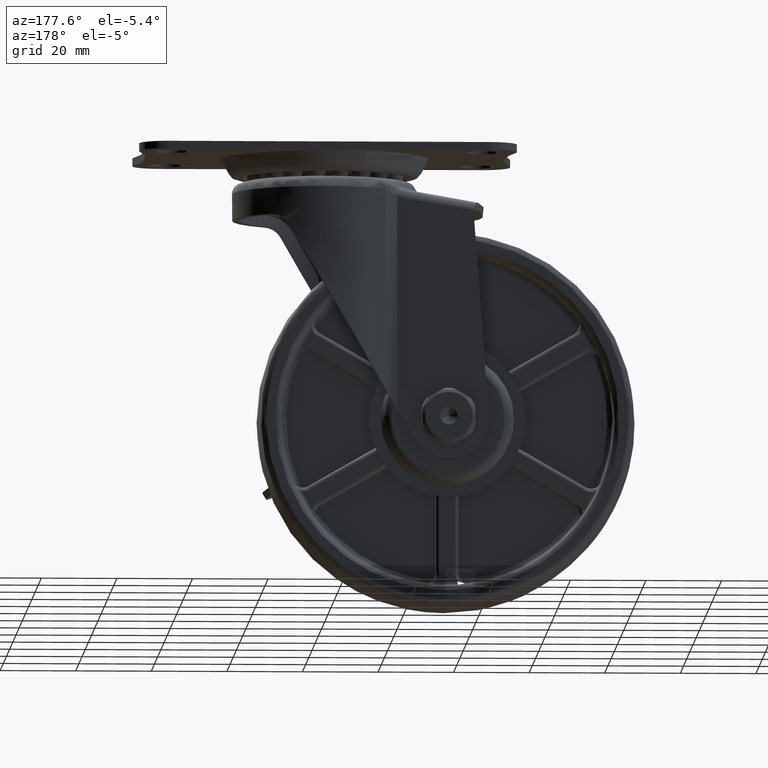
[diagram: clean part render]
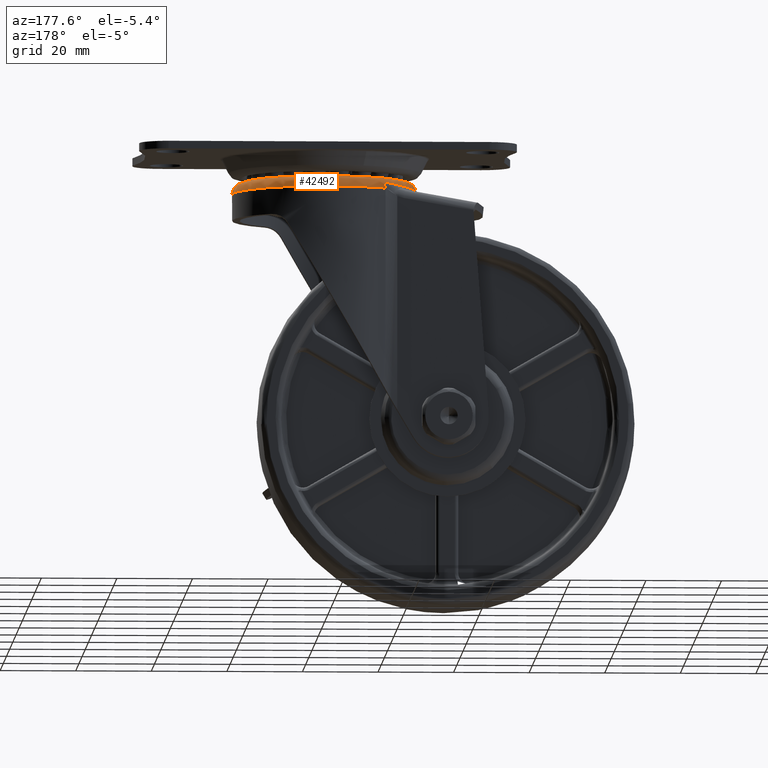
[diagram: same view with one face highlighted and labeled with its STEP entity id]
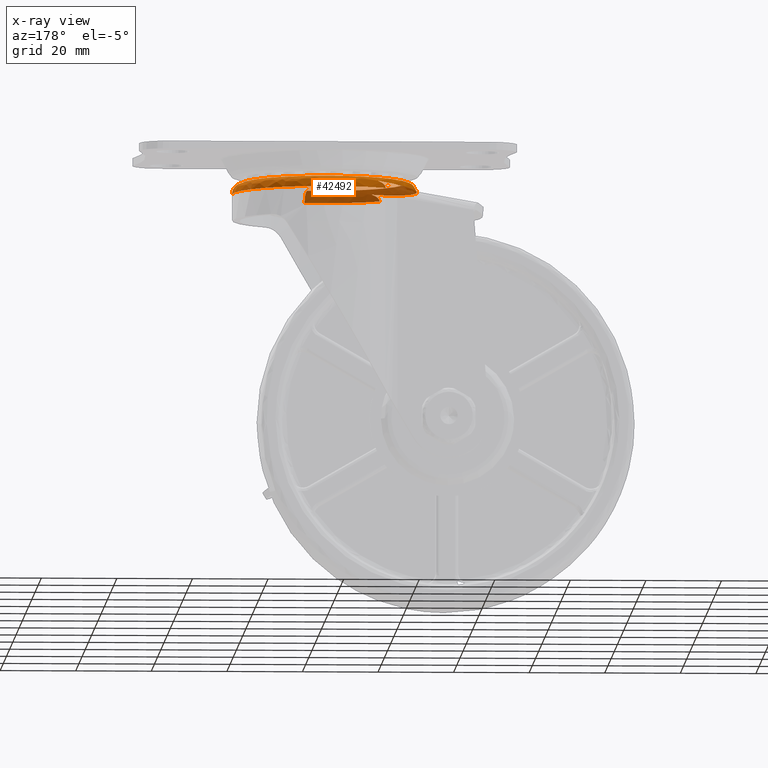
[diagram: x-ray of the same camera — body ghosted, the highlighted face saturated]
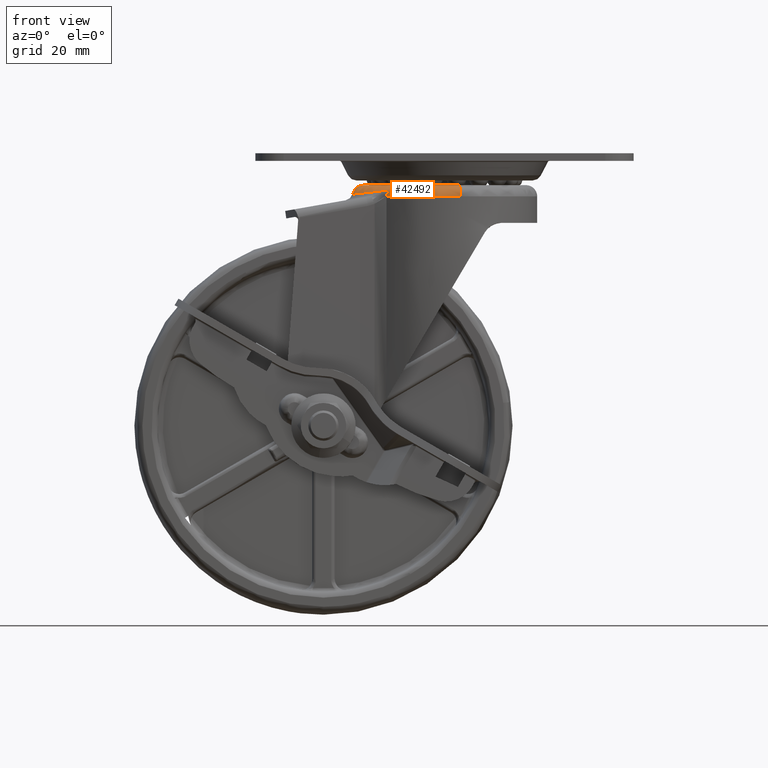
[diagram: same view with one face highlighted and labeled with its STEP entity id]
A machine part, auxiliary view. The second image highlights one B-rep face of the part: STEP entity #42492.
The next image is the same camera in x-ray: the body ghosted, the highlighted face saturated — about 41% of this face is hidden behind the body in this view.
A second angle (front view) of the same face is appended — the face is thin or edge-on in the first view.
In plain terms, the highlighted face is a freeform B-spline surface patch.
Its self-contained STEP definition (entity closure, byte-faithful):
#42207=CARTESIAN_POINT('',(3.716243674758292,-20.965127360064976,-6.407224996002399));
#42208=CARTESIAN_POINT('',(1.872492728197480,-21.291947592315886,-6.407224996002400));
#42209=CARTESIAN_POINT('',(2.607425E-015,-21.291947592315882,-6.407224996002400));
#42210=CARTESIAN_POINT('',(-21.291947592315889,-21.291947592315889,-6.407224996002399));
#42211=CARTESIAN_POINT('',(-21.291947592315882,-3.911138E-015,-6.407224996002400));
#42212=CARTESIAN_POINT('',(-21.291947592315889,21.291947592315889,-6.407224996002399));
#42213=CARTESIAN_POINT('',(-5.214851E-015,21.291947592315882,-6.407224996002400));
#42214=CARTESIAN_POINT('',(21.291947592315875,21.291947592315889,-6.407224996002399));
#42215=CARTESIAN_POINT('',(21.291947592315882,6.518564E-015,-6.407224996002400));
#42216=CARTESIAN_POINT('',(4.316874363510777,-24.353575478144410,-6.167994185442002));
#42217=CARTESIAN_POINT('',(2.175130739978131,-24.733217397662070,-6.167994185442001));
#42218=CARTESIAN_POINT('',(3.028846E-015,-24.733217397662063,-6.167994185442000));
#42219=CARTESIAN_POINT('',(-24.733217397662056,-24.733217397662081,-6.167994185442001));
#42220=CARTESIAN_POINT('',(-24.733217397662063,-4.543268E-015,-6.167994185442000));
#42221=CARTESIAN_POINT('',(-24.733217397662081,24.733217397662056,-6.167994185442001));
#42222=CARTESIAN_POINT('',(-6.057691E-015,24.733217397662063,-6.167994185442000));
#42223=CARTESIAN_POINT('',(24.733217397662056,24.733217397662081,-6.167994185442001));
#42224=CARTESIAN_POINT('',(24.733217397662063,7.572114E-015,-6.167994185442000));
#42225=CARTESIAN_POINT('',(4.274894869908892,-24.116748857798605,-9.609174234192897));
#42226=CARTESIAN_POINT('',(2.153978656481332,-24.492698945173522,-9.609174234192899));
#42227=CARTESIAN_POINT('',(2.999391E-015,-24.492698945173519,-9.609174234192897));
#42228=CARTESIAN_POINT('',(-24.492698945173519,-24.492698945173519,-9.609174234192901));
#42229=CARTESIAN_POINT('',(-24.492698945173519,-4.499087E-015,-9.609174234192897));
#42230=CARTESIAN_POINT('',(-24.492698945173519,24.492698945173519,-9.609174234192901));
#42231=CARTESIAN_POINT('',(-5.998783E-015,24.492698945173519,-9.609174234192897));
#42232=CARTESIAN_POINT('',(24.492698945173519,24.492698945173537,-9.609174234192901));
#42233=CARTESIAN_POINT('',(24.492698945173519,7.498479E-015,-9.609174234192897));
#42241=(BOUNDED_SURFACE()B_SPLINE_SURFACE(2,2,((#42207,#42216,#42225),(#42208,#42217,#42226),(#42209,#42218,#42227),(#42210,#42219,#42228),(#42211,#42220,#42229),(#42212,#42221,#42230),(#42213,#42222,#42231),(#42214,#42223,#42232),(#42215,#42224,#42233)),.UNSPECIFIED.,.F.,.F.,.U.)B_SPLINE_SURFACE_WITH_KNOTS((3,2,2,2,3),(3,3),(0.0,4.869695235354091,45.450527564202382,86.031359893050663,126.612192221898990),(0.0,5.467111417930088),.UNSPECIFIED.)GEOMETRIC_REPRESENTATION_ITEM()RATIONAL_B_SPLINE_SURFACE(((0.859305935361343,0.562333827768314,0.854545976560270),(0.883773095548491,0.578345251961345,0.878877605652289),(0.915966717678244,0.599412909028485,0.910892897447420),(0.647686277411470,0.423848932704797,0.644098544719733),(0.915966717678244,0.599412909028485,0.910892897447420),(0.647686277411470,0.423848932704797,0.644098544719733),(0.915966717678244,0.599412909028485,0.910892897447420),(0.647686277411470,0.423848932704797,0.644098544719733),(0.915966717678244,0.599412909028485,0.910892897447420)))REPRESENTATION_ITEM('')SURFACE());
#42242=CARTESIAN_POINT('',(4.276173339646856,-24.123937107555498,-9.400001998327134));
#42243=VERTEX_POINT('',#42242);
#42244=CARTESIAN_POINT('',(-15.341944184638100,-19.101694915254249,-9.400001999999999));
#42245=VERTEX_POINT('',#42244);
#42246=CARTESIAN_POINT('',(4.276173339646856,-24.123937107555498,-9.400001998327134));
#42247=CARTESIAN_POINT('',(2.456118747180007,-24.446944443260410,-9.400001998605282));
#42248=CARTESIAN_POINT('',(-0.929628026305777,-24.657379014430379,-9.400001999061859));
#42249=CARTESIAN_POINT('',(-5.793001161838604,-23.951752289160460,-9.400001999560613));
#42250=CARTESIAN_POINT('',(-10.647888235969830,-22.286091292938060,-9.400001999908749));
#42251=CARTESIAN_POINT('',(-13.731542516180870,-20.395854190378099,-9.400002000000104));
#42252=CARTESIAN_POINT('',(-15.341944184638100,-19.101694915254249,-9.400001999999999));
#42253=B_SPLINE_CURVE_WITH_KNOTS('',3,(#42246,#42247,#42248,#42249,#42250,#42251,#42252),.UNSPECIFIED.,.F.,.U.,(4,1,1,1,4),(0.000000016025691,5.545401763803277,10.112204577186651,14.679004023209780,20.876806389882969),.UNSPECIFIED.);
#42254=EDGE_CURVE('',#42243,#42245,#42253,.T.);
#42255=ORIENTED_EDGE('',*,*,#42254,.F.);
#42256=CARTESIAN_POINT('',(3.752560288242226,-21.169985670197590,-6.400002000000001));
#42257=VERTEX_POINT('',#42256);
#42258=CARTESIAN_POINT('',(3.752560288242226,-21.169985670197590,-6.400002000000001));
#42259=CARTESIAN_POINT('',(3.812537802786486,-21.508347490671209,-6.399798562871077));
#42260=CARTESIAN_POINT('',(3.923889779038400,-22.136537199501721,-6.510821443963620));
#42261=CARTESIAN_POINT('',(4.057556512446853,-22.890615116810089,-6.920224804264058));
#42262=CARTESIAN_POINT('',(4.158596669583459,-23.460630926392859,-7.458080854715424));
#42263=CARTESIAN_POINT('',(4.248223293001825,-23.966257538185928,-8.246929262651131));
#42264=CARTESIAN_POINT('',(4.276282650163525,-24.124553780414882,-8.958092850889267));
#42265=CARTESIAN_POINT('',(4.276173339646856,-24.123937107555498,-9.400001998327134));
#42266=B_SPLINE_CURVE_WITH_KNOTS('',3,(#42258,#42259,#42260,#42261,#42262,#42263,#42264,#42265),.UNSPECIFIED.,.F.,.U.,(4,1,1,1,1,4),(0.000000571946087,1.030853910485774,1.914459921600274,2.577150118331610,3.387107232801323,4.712507216697341),.UNSPECIFIED.);
#42267=EDGE_CURVE('',#42257,#42243,#42266,.T.);
#42268=ORIENTED_EDGE('',*,*,#42267,.F.);
#42269=CARTESIAN_POINT('',(-21.500000000000000,0.0,-6.400002000000000));
#42270=VERTEX_POINT('',#42269);
#42271=CARTESIAN_POINT('',(-21.500000000000000,0.0,-6.400002000000000));
#42272=CARTESIAN_POINT('',(-21.501048209837609,-2.151056934244533,-6.400001999999992));
#42273=CARTESIAN_POINT('',(-20.922787328148821,-5.963555613618548,-6.400002000000012));
#42274=CARTESIAN_POINT('',(-18.973290875219291,-10.375027064336431,-6.400001999999983));
#42275=CARTESIAN_POINT('',(-16.758767616982741,-13.609578365557191,-6.400002000000049));
#42276=CARTESIAN_POINT('',(-14.129639857556620,-16.391976325070068,-6.400001999999893));
#42277=CARTESIAN_POINT('',(-10.436549584554870,-19.005508402638899,-6.400002000000082));
#42278=CARTESIAN_POINT('',(-6.431990883438630,-20.654878475652310,-6.400001999999985));
#42279=CARTESIAN_POINT('',(-2.972360928160853,-21.354873478336959,-6.400001999999987));
#42280=CARTESIAN_POINT('',(0.250945345562225,-21.581300602464140,-6.400002000000018));
#42281=CARTESIAN_POINT('',(2.404808433907985,-21.409066832979690,-6.400001999999998));
#42282=CARTESIAN_POINT('',(3.752560288242226,-21.169985670197590,-6.400002000000001));
#42283=B_SPLINE_CURVE_WITH_KNOTS('',3,(#42271,#42272,#42273,#42274,#42275,#42276,#42277,#42278,#42279,#42280,#42281,#42282),.UNSPECIFIED.,.F.,.U.,(4,1,1,1,1,1,1,1,1,4),(0.000000029450590,6.452906660605297,11.439303376482270,14.372461039395111,18.185519980451168,22.878502023739010,27.864903016368419,31.091403549067600,33.437934624833922,37.544291095004731),.UNSPECIFIED.);
#42284=EDGE_CURVE('',#42270,#42257,#42283,.T.);
#42285=ORIENTED_EDGE('',*,*,#42284,.F.);
#42286=CARTESIAN_POINT('',(-0.000004487106987,21.499999999999531,-6.400002000000000));
#42287=VERTEX_POINT('',#42286);
#42288=CARTESIAN_POINT('',(-0.000004487106987,21.499999999999531,-6.400002000000000));
#42289=CARTESIAN_POINT('',(-1.759021788123397,21.500513242483329,-6.400001999999980));
#42290=CARTESIAN_POINT('',(-4.309261071657890,21.185140195735482,-6.400002000000020));
#42291=CARTESIAN_POINT('',(-7.926939056987589,20.063428673962079,-6.400001999999986));
#42292=CARTESIAN_POINT('',(-10.640069148231969,18.780235310738551,-6.400001999999984));
#42293=CARTESIAN_POINT('',(-13.413706326822330,16.902189865630810,-6.400002000000023));
#42294=CARTESIAN_POINT('',(-15.884017853809629,14.635502587098690,-6.400001999999961));
#42295=CARTESIAN_POINT('',(-18.328139110939290,11.504073313144501,-6.400002000000005));
#42296=CARTESIAN_POINT('',(-20.078551470587321,8.026389725681195,-6.400002000000068));
#42297=CARTESIAN_POINT('',(-21.232838468590248,4.045526772446341,-6.400001999999917));
#42298=CARTESIAN_POINT('',(-21.500209124182280,1.495134825990984,-6.400002000000060));
#42299=CARTESIAN_POINT('',(-21.500000000000000,0.0,-6.400002000000000));
#42300=B_SPLINE_CURVE_WITH_KNOTS('',3,(#42288,#42289,#42290,#42291,#42292,#42293,#42294,#42295,#42296,#42297,#42298,#42299),.UNSPECIFIED.,.F.,.U.,(4,1,1,1,1,1,1,1,1,4),(0.000000133384098,5.276898045397743,7.651543634478795,11.345424153112100,14.247707170473880,17.677624497909321,21.371550836312078,26.120796422705890,29.286944856033308,33.772330403651381),.UNSPECIFIED.);
#42301=EDGE_CURVE('',#42287,#42270,#42300,.T.);
#42302=ORIENTED_EDGE('',*,*,#42301,.F.);
#42303=CARTESIAN_POINT('',(21.500000003836188,7.535010E-016,-6.400002000000000));
#42304=VERTEX_POINT('',#42303);
#42305=CARTESIAN_POINT('',(21.500000003836188,7.535010E-016,-6.400002000000000));
#42306=CARTESIAN_POINT('',(21.500248655907779,1.495125457307868,-6.400002000000005));
#42307=CARTESIAN_POINT('',(21.232814846018801,4.045519810608311,-6.400001999999989));
#42308=CARTESIAN_POINT('',(20.176675020996250,7.687532356353027,-6.400002000000026));
#42309=CARTESIAN_POINT('',(18.704776380063269,10.799705437246709,-6.400001999999972));
#42310=CARTESIAN_POINT('',(16.791072949005230,13.552532371274509,-6.400002000000024));
#42311=CARTESIAN_POINT('',(14.496288826393970,15.992641273025480,-6.400001999999999));
#42312=CARTESIAN_POINT('',(11.643209434657800,18.219399715794900,-6.400001999999992));
#42313=CARTESIAN_POINT('',(8.191663570609345,20.010173087856462,-6.400001999999962));
#42314=CARTESIAN_POINT('',(4.221435043151327,21.214414553323049,-6.400002000000023));
#42315=CARTESIAN_POINT('',(1.495128357242207,21.500236658252572,-6.400001999999987));
#42316=CARTESIAN_POINT('',(-0.000004487106987,21.499999999999531,-6.400002000000000));
#42317=B_SPLINE_CURVE_WITH_KNOTS('',3,(#42305,#42306,#42307,#42308,#42309,#42310,#42311,#42312,#42313,#42314,#42315,#42316),.UNSPECIFIED.,.F.,.U.,(4,1,1,1,1,1,1,1,1,4),(0.000000131827022,4.485344734439654,7.651544779880855,11.345425851335341,14.775446014141851,17.677627144648991,21.371554041342328,25.593099194996999,29.286949245929250,33.772335463860571),.UNSPECIFIED.);
#42318=EDGE_CURVE('',#42304,#42287,#42317,.T.);
#42319=ORIENTED_EDGE('',*,*,#42318,.F.);
#42320=CARTESIAN_POINT('',(24.499999999999989,-1.300018E-015,-9.400001998348277));
#42321=VERTEX_POINT('',#42320);
#42322=CARTESIAN_POINT('',(21.500000003836188,7.535010E-016,-6.400002000000000));
#42323=CARTESIAN_POINT('',(21.941923163811939,6.930183E-016,-6.399304477618513));
#42324=CARTESIAN_POINT('',(22.653056483444910,5.070968E-016,-6.560210456190413));
#42325=CARTESIAN_POINT('',(23.421148851278691,1.279751E-016,-7.060110453023404));
#42326=CARTESIAN_POINT('',(23.897262073259888,-2.110687E-016,-7.560257515222307));
#42327=CARTESIAN_POINT('',(24.350843465503321,-6.758316E-016,-8.296005814193238));
#42328=CARTESIAN_POINT('',(24.500730554299029,-1.058475E-015,-8.958061914435318));
#42329=CARTESIAN_POINT('',(24.499999999999989,-1.300018E-015,-9.400001998348277));
#42330=B_SPLINE_CURVE_WITH_KNOTS('',3,(#42322,#42323,#42324,#42325,#42326,#42327,#42328,#42329),.UNSPECIFIED.,.F.,.U.,(4,1,1,1,1,4),(0.000000571887894,1.325400559831643,2.135357676706540,2.724356421975858,3.387107243289653,4.712507231239888),.UNSPECIFIED.);
#42331=EDGE_CURVE('',#42304,#42321,#42330,.T.);
#42332=ORIENTED_EDGE('',*,*,#42331,.T.);
#42333=CARTESIAN_POINT('',(-15.341944184638100,19.101694915254249,-9.400001999999999));
#42334=VERTEX_POINT('',#42333);
#42335=CARTESIAN_POINT('',(-15.341944184638100,19.101694915254249,-9.400001999999999));
#42336=CARTESIAN_POINT('',(-14.224056536398320,19.999710104811079,-9.400002000052647));
#42337=CARTESIAN_POINT('',(-11.949650174628269,21.518626987922030,-9.400002000138500));
#42338=CARTESIAN_POINT('',(-8.734837104322081,22.962313706547590,-9.400002000211345));
#42339=CARTESIAN_POINT('',(-5.437947370313104,23.963322932684541,-9.400002000252846));
#42340=CARTESIAN_POINT('',(-2.243328613133221,24.489020606832032,-9.400002000262383));
#42341=CARTESIAN_POINT('',(1.492686402011176,24.540721362094729,-9.400002000234904));
#42342=CARTESIAN_POINT('',(4.915321485850671,24.089737264315730,-9.400002000175032));
#42343=CARTESIAN_POINT('',(8.579454725024313,23.052463590682429,-9.400002000072805));
#42344=CARTESIAN_POINT('',(11.916605776243530,21.523974358282501,-9.400001999939480));
#42345=CARTESIAN_POINT('',(15.685610271889640,19.014314022239461,-9.400001999734496));
#42346=CARTESIAN_POINT('',(18.879560689502529,15.877934725403460,-9.400001999491719));
#42347=CARTESIAN_POINT('',(21.692397865390362,11.700202562488670,-9.400001999179374));
#42348=CARTESIAN_POINT('',(23.250557624459720,8.053963048296732,-9.400001998914668));
#42349=CARTESIAN_POINT('',(24.263702638524240,4.014877750777632,-9.400001998627721));
#42350=CARTESIAN_POINT('',(24.500209399913640,1.577316971260182,-9.400001998456528));
#42351=CARTESIAN_POINT('',(24.499999999999989,-1.300018E-015,-9.400001998348277));
#42352=B_SPLINE_CURVE_WITH_KNOTS('',3,(#42335,#42336,#42337,#42338,#42339,#42340,#42341,#42342,#42343,#42344,#42345,#42346,#42347,#42348,#42349,#42350,#42351),.UNSPECIFIED.,.F.,.U.,(4,1,1,1,1,1,1,1,1,1,1,1,1,1,4),(0.000000365391550,4.301726409931007,8.173406235676687,10.539399234248780,14.626159167773819,17.852554933803209,21.724224995292118,24.950600057099219,29.252176417541680,32.693659415779393,38.501173610512637,42.587921019577983,47.750147029981846,50.331245177090700,55.063151421818617),.UNSPECIFIED.);
#42353=EDGE_CURVE('',#42334,#42321,#42352,.T.);
#42354=ORIENTED_EDGE('',*,*,#42353,.F.);
#42355=CARTESIAN_POINT('',(-13.355477428847021,19.757674919278500,-7.532873662822509));
#42356=VERTEX_POINT('',#42355);
#42357=CARTESIAN_POINT('',(-15.341944184638100,19.101694915254249,-9.400001999999999));
#42358=CARTESIAN_POINT('',(-15.341944184638100,19.101694915254249,-9.337052079976445));
#42359=CARTESIAN_POINT('',(-15.336458467353340,19.103566724448459,-9.275119439691295));
#42360=CARTESIAN_POINT('',(-15.315403210298490,19.110746572707580,-9.153123862406995));
#42361=CARTESIAN_POINT('',(-15.299771854100801,19.116075622887070,-9.092892803666100));
#42362=CARTESIAN_POINT('',(-15.239008056495070,19.136769948611970,-8.915893862579104));
#42363=CARTESIAN_POINT('',(-15.182342033843650,19.156046561384471,-8.808106390781115));
#42364=CARTESIAN_POINT('',(-15.080651545773421,19.190518716705700,-8.656954814171803));
#42365=CARTESIAN_POINT('',(-15.043815675662930,19.202988752707530,-8.608255472883004));
#42366=CARTESIAN_POINT('',(-14.965608194127761,19.229414817592041,-8.514477917923195));
#42367=CARTESIAN_POINT('',(-14.924469611681850,19.243292173418101,-8.469650585365987));
#42368=CARTESIAN_POINT('',(-14.838778756873690,19.272138334562989,-8.383447151487784));
#42369=CARTESIAN_POINT('',(-14.794439384639061,19.287035325224291,-8.342298769853377));
#42370=CARTESIAN_POINT('',(-14.703849901542760,19.317402771405359,-8.263717664039847));
#42371=CARTESIAN_POINT('',(-14.657504650915220,19.332905281984029,-8.226194253041424));
#42372=CARTESIAN_POINT('',(-14.515815454103141,19.380185583603900,-8.118071191730827));
#42373=CARTESIAN_POINT('',(-14.417842578478041,19.412727704205700,-8.051876968069195));
#42374=CARTESIAN_POINT('',(-14.216588374024170,19.479199654921729,-7.928305515452804));
#42375=CARTESIAN_POINT('',(-14.113291707758590,19.513134773073059,-7.870954406953656));
#42376=CARTESIAN_POINT('',(-13.902418142319160,19.581974098305491,-7.763285681701722));
#42377=CARTESIAN_POINT('',(-13.794658162081850,19.616937015461350,-7.712909375019362));
#42378=CARTESIAN_POINT('',(-13.576833153919990,19.687116922401842,-7.618494060833899));
#42379=CARTESIAN_POINT('',(-13.466677761711120,19.722364314083759,-7.574401209251845));
#42380=CARTESIAN_POINT('',(-13.355477428847021,19.757674919278500,-7.532873662822509));
#42381=B_SPLINE_CURVE_WITH_KNOTS('',3,(#42357,#42358,#42359,#42360,#42361,#42362,#42363,#42364,#42365,#42366,#42367,#42368,#42369,#42370,#42371,#42372,#42373,#42374,#42375,#42376,#42377,#42378,#42379,#42380),.UNSPECIFIED.,.F.,.U.,(4,2,2,2,2,2,2,2,2,2,2,4),(0.0,0.062500000000000,0.125000000000000,0.250000000000000,0.312500000000001,0.375000000000001,0.437500000000002,0.500000000000002,0.625000000000002,0.750000000000002,0.875000000000001,1.0),.UNSPECIFIED.);
#42382=EDGE_CURVE('',#42334,#42356,#42381,.T.);
#42383=ORIENTED_EDGE('',*,*,#42382,.T.);
#42384=CARTESIAN_POINT('',(-13.355477428847101,-19.757674919278500,-7.532873662822540));
#42385=VERTEX_POINT('',#42384);
#42386=CARTESIAN_POINT('',(-13.355477428847021,19.757674919278500,-7.532873662822509));
#42387=CARTESIAN_POINT('',(-13.786768343871790,19.514165512443100,-7.582914635661657));
#42388=CARTESIAN_POINT('',(-14.207632139651430,19.254972243340131,-7.631783691546312));
#42389=CARTESIAN_POINT('',(-15.029337753567081,18.706464927780559,-7.727243152140598));
#42390=CARTESIAN_POINT('',(-15.430175640128690,18.417144977816001,-7.773833173742537));
#42391=CARTESIAN_POINT('',(-16.016684916965549,17.960976111784049,-7.842022819938477));
#42392=CARTESIAN_POINT('',(-16.209611127831959,17.805295131860110,-7.864456365534256));
#42393=CARTESIAN_POINT('',(-16.589177509324120,17.487762688185921,-7.908596693928386));
#42394=CARTESIAN_POINT('',(-16.775991364728540,17.325777871873019,-7.930323670733068));
#42395=CARTESIAN_POINT('',(-17.327649452808458,16.830302249491879,-7.994486446535013));
#42396=CARTESIAN_POINT('',(-17.683722474883549,16.487303549539568,-8.035905365954168));
#42397=CARTESIAN_POINT('',(-18.200543658647440,15.954063997750911,-8.096020396800077));
#42398=CARTESIAN_POINT('',(-18.369992230826380,15.773124652052340,-8.115729763008641));
#42399=CARTESIAN_POINT('',(-18.702873318717099,15.405281188202810,-8.154446898820847));
#42400=CARTESIAN_POINT('',(-18.866019502895998,15.218698270236970,-8.173421366043506));
#42401=CARTESIAN_POINT('',(-19.345694586241560,14.651062463380081,-8.229205160089622));
#42402=CARTESIAN_POINT('',(-19.652472324625240,14.262132454430990,-8.264876208199093));
#42403=CARTESIAN_POINT('',(-20.093374571557039,13.663175167530460,-8.316131179766890));
#42404=CARTESIAN_POINT('',(-20.237264041452772,13.460726293392220,-8.332856361671599));
#42405=CARTESIAN_POINT('',(-20.517954237140799,13.051617212928191,-8.365478524986358));
#42406=CARTESIAN_POINT('',(-20.654615410712172,12.845176919625420,-8.381359293137152));
#42407=CARTESIAN_POINT('',(-21.053738304137301,12.220296625999749,-8.427732994324794));
#42408=CARTESIAN_POINT('',(-21.305352563091159,11.796303948070090,-8.456958800754560));
#42409=CARTESIAN_POINT('',(-22.017811883050619,10.502630521729911,-8.539688023955590));
#42410=CARTESIAN_POINT('',(-22.436459643627529,9.611349640889094,-8.588264461152296));
#42411=CARTESIAN_POINT('',(-22.889766992972049,8.461416668615261,-8.640832443366952));
#42412=CARTESIAN_POINT('',(-22.976913475034131,8.229630871298461,-8.650936718651131));
#42413=CARTESIAN_POINT('',(-23.144126883549038,7.762435530675331,-8.670321502297785));
#42414=CARTESIAN_POINT('',(-23.224257322279811,7.526791574417510,-8.679609367795816));
#42415=CARTESIAN_POINT('',(-23.452534388974620,6.818883284021512,-8.706065041596878));
#42416=CARTESIAN_POINT('',(-23.589088465389580,6.344321201709258,-8.721885442066650));
#42417=CARTESIAN_POINT('',(-23.953137414502262,4.912980019235960,-8.764052651673197));
#42418=CARTESIAN_POINT('',(-24.135208569674500,3.948577806027193,-8.785127971468841));
#42419=CARTESIAN_POINT('',(-24.379983370921469,1.999741448184454,-8.813457084312386));
#42420=CARTESIAN_POINT('',(-24.442696522541478,1.015308902052699,-8.820712150464141));
#42421=CARTESIAN_POINT('',(-24.444403644980010,-0.974318162075381,-8.820909667894568));
#42422=CARTESIAN_POINT('',(-24.383351944389741,-1.965012999045718,-8.813846883629354));
#42423=CARTESIAN_POINT('',(-24.229781194754789,-3.197476312428643,-8.796073388390754));
#42424=CARTESIAN_POINT('',(-24.195139153359769,-3.443977851807663,-8.792063846569405));
#42425=CARTESIAN_POINT('',(-24.118338887626670,-3.934574215952383,-8.783173973013247));
#42426=CARTESIAN_POINT('',(-24.076187632927471,-4.178707496462554,-8.778294448383367));
#42427=CARTESIAN_POINT('',(-23.938597419513162,-4.907648915849915,-8.762364938782392));
#42428=CARTESIAN_POINT('',(-23.832034074280440,-5.389002379439758,-8.750025437699497));
#42429=CARTESIAN_POINT('',(-23.468321023047679,-6.819391195674732,-8.707897155796768));
#42430=CARTESIAN_POINT('',(-23.167342324984102,-7.754815231617375,-8.673021196772222));
#42431=CARTESIAN_POINT('',(-22.626590677685620,-9.130222709763244,-8.610313277116328));
#42432=CARTESIAN_POINT('',(-22.431412125282701,-9.584055717194667,-8.587672767586053));
#42433=CARTESIAN_POINT('',(-22.115594898599038,-10.257646707918470,-8.551025075102428));
#42434=CARTESIAN_POINT('',(-22.006400096519361,-10.481112412428340,-8.538351970781234));
#42435=CARTESIAN_POINT('',(-21.781331539094982,-10.923407005688700,-8.512226125258009));
#42436=CARTESIAN_POINT('',(-21.665339162317942,-11.142501823105469,-8.498759621419902));
#42437=CARTESIAN_POINT('',(-21.306982686446890,-11.793625797808390,-8.457148162731425));
#42438=CARTESIAN_POINT('',(-21.054251819746550,-12.219501938372780,-8.427792661961837));
#42439=CARTESIAN_POINT('',(-20.654174241991281,-12.845862980190820,-8.381308032792493));
#42440=CARTESIAN_POINT('',(-20.517315074887851,-13.052572630110509,-8.365404247837528));
#42441=CARTESIAN_POINT('',(-20.236517645256189,-13.461790225165689,-8.332769607460760));
#42442=CARTESIAN_POINT('',(-20.092678249090220,-13.664142765371830,-8.316050238317461));
#42443=CARTESIAN_POINT('',(-19.651803209349179,-14.262997968359500,-8.264798411031032));
#42444=CARTESIAN_POINT('',(-19.345046891767289,-14.651862573279290,-8.229129843637091));
#42445=CARTESIAN_POINT('',(-18.865408744405318,-15.219404155717660,-8.173350334324724));
#42446=CARTESIAN_POINT('',(-18.702275674422498,-15.405956313615469,-8.154377389444877));
#42447=CARTESIAN_POINT('',(-18.369422416565381,-15.773739551241380,-8.115663486196622));
#42448=CARTESIAN_POINT('',(-18.199990225879709,-15.954647678790140,-8.095956023954459));
#42449=CARTESIAN_POINT('',(-17.683218184242278,-16.487798467493270,-8.035846706972219));
#42450=CARTESIAN_POINT('',(-17.327180874888349,-16.830741191751489,-7.994431943102211));
#42451=CARTESIAN_POINT('',(-16.775580747678720,-17.326137611779380,-7.930275914108493));
#42452=CARTESIAN_POINT('',(-16.588786945949810,-17.488096822377312,-7.908551271970474));
#42453=CARTESIAN_POINT('',(-16.209262150732670,-17.805579657869242,-7.864415785256703));
#42454=CARTESIAN_POINT('',(-16.016357350334989,-17.961236717094849,-7.841984732484115));
#42455=CARTESIAN_POINT('',(-15.429916581199080,-18.417334784093971,-7.773803061436650));
#42456=CARTESIAN_POINT('',(-15.029126894913359,-18.706611339470449,-7.727218649955146));
#42457=CARTESIAN_POINT('',(-14.207522801186251,-19.255039568354309,-7.631770995686939));
#42458=CARTESIAN_POINT('',(-13.786712323131560,-19.514197142085049,-7.582908135797542));
#42459=CARTESIAN_POINT('',(-13.355477428847101,-19.757674919278500,-7.532873662822540));
#42460=B_SPLINE_CURVE_WITH_KNOTS('',3,(#42386,#42387,#42388,#42389,#42390,#42391,#42392,#42393,#42394,#42395,#42396,#42397,#42398,#42399,#42400,#42401,#42402,#42403,#42404,#42405,#42406,#42407,#42408,#42409,#42410,#42411,#42412,#42413,#42414,#42415,#42416,#42417,#42418,#42419,#42420,#42421,#42422,#42423,#42424,#42425,#42426,#42427,#42428,#42429,#42430,#42431,#42432,#42433,#42434,#42435,#42436,#42437,#42438,#42439,#42440,#42441,#42442,#42443,#42444,#42445,#42446,#42447,#42448,#42449,#42450,#42451,#42452,#42453,#42454,#42455,#42456,#42457,#42458,#42459),.UNSPECIFIED.,.F.,.U.,(4,2,2,2,2,2,2,2,2,2,2,2,2,2,2,2,2,2,2,2,2,2,2,2,2,2,2,2,2,2,2,2,2,2,2,2,4),(0.0,0.031250000000000,0.062500000000000,0.078125000000000,0.093750000000000,0.125000000000000,0.140625000000000,0.156250000000001,0.187500000000001,0.203125000000001,0.218750000000001,0.250000000000001,0.312500000000002,0.328125000000002,0.343750000000002,0.375000000000002,0.437500000000002,0.500000000000001,0.562500000000001,0.578125000000001,0.593750000000001,0.625000000000001,0.687500000000001,0.718750000000001,0.734375000000001,0.750000000000001,0.781250000000001,0.796875000000001,0.812500000000001,0.843750000000001,0.859375000000001,0.875000000000001,0.906250000000001,0.921875000000001,0.937500000000000,0.968750000000000,1.0),.UNSPECIFIED.);
#42461=EDGE_CURVE('',#42356,#42385,#42460,.T.);
#42462=ORIENTED_EDGE('',*,*,#42461,.T.);
#42463=CARTESIAN_POINT('',(-13.355477428847101,-19.757674919278500,-7.532873662822540));
#42464=CARTESIAN_POINT('',(-13.466618510623301,-19.722383128701651,-7.574379082049195));
#42465=CARTESIAN_POINT('',(-13.576715758557610,-19.687154486535189,-7.618447090659825));
#42466=CARTESIAN_POINT('',(-13.794427362958890,-19.617011633885330,-7.712805428044844));
#42467=CARTESIAN_POINT('',(-13.902132637893949,-19.582066844580350,-7.763149826118363));
#42468=CARTESIAN_POINT('',(-14.112903036467900,-19.513262108884248,-7.870746070698691));
#42469=CARTESIAN_POINT('',(-14.216150821261740,-19.479343589544790,-7.928056456323606));
#42470=CARTESIAN_POINT('',(-14.417314978011721,-19.412902545806290,-8.051533510369508));
#42471=CARTESIAN_POINT('',(-14.515246623345931,-19.380374755451701,-8.117674167427987));
#42472=CARTESIAN_POINT('',(-14.656883035300860,-19.333113026689180,-8.225701549940697));
#42473=CARTESIAN_POINT('',(-14.703212221350849,-19.317616212990419,-8.263190478658279));
#42474=CARTESIAN_POINT('',(-14.793773657108771,-19.287258807947481,-8.341695696001624));
#42475=CARTESIAN_POINT('',(-14.838120879510781,-19.272359484382971,-8.382822762864640));
#42476=CARTESIAN_POINT('',(-14.966558844600479,-19.229124267161460,-8.511917635166306));
#42477=CARTESIAN_POINT('',(-15.045068621124960,-19.202580285095259,-8.604321793060160));
#42478=CARTESIAN_POINT('',(-15.147688607352629,-19.167794111591800,-8.756472404452692));
#42479=CARTESIAN_POINT('',(-15.179392000873859,-19.157029849677070,-8.809652892367021));
#42480=CARTESIAN_POINT('',(-15.235311885014751,-19.138023309542529,-8.919314782615642));
#42481=CARTESIAN_POINT('',(-15.259701573000569,-19.129722422619789,-8.976006592516116));
#42482=CARTESIAN_POINT('',(-15.300025698141161,-19.115989105462582,-9.093800528989297));
#42483=CARTESIAN_POINT('',(-15.315552401207510,-19.110695707224242,-9.153816543163586));
#42484=CARTESIAN_POINT('',(-15.336489731840359,-19.103556054518791,-9.275473814163496));
#42485=CARTESIAN_POINT('',(-15.341944184638100,-19.101694915254249,-9.337232166136603));
#42486=CARTESIAN_POINT('',(-15.341944184638100,-19.101694915254249,-9.400001999999999));
#42487=B_SPLINE_CURVE_WITH_KNOTS('',3,(#42463,#42464,#42465,#42466,#42467,#42468,#42469,#42470,#42471,#42472,#42473,#42474,#42475,#42476,#42477,#42478,#42479,#42480,#42481,#42482,#42483,#42484,#42485,#42486),.UNSPECIFIED.,.F.,.U.,(4,2,2,2,2,2,2,2,2,2,2,4),(0.0,0.125000000000001,0.250000000000002,0.375000000000004,0.500000000000005,0.562500000000006,0.625000000000006,0.750000000000004,0.812500000000003,0.875000000000002,0.937500000000001,1.0),.UNSPECIFIED.);
#42488=EDGE_CURVE('',#42385,#42245,#42487,.T.);
#42489=ORIENTED_EDGE('',*,*,#42488,.T.);
#42490=EDGE_LOOP('',(#42255,#42268,#42285,#42302,#42319,#42332,#42354,#42383,#42462,#42489));
#42491=FACE_OUTER_BOUND('',#42490,.T.);
#42492=ADVANCED_FACE('',(#42491),#42241,.T.);